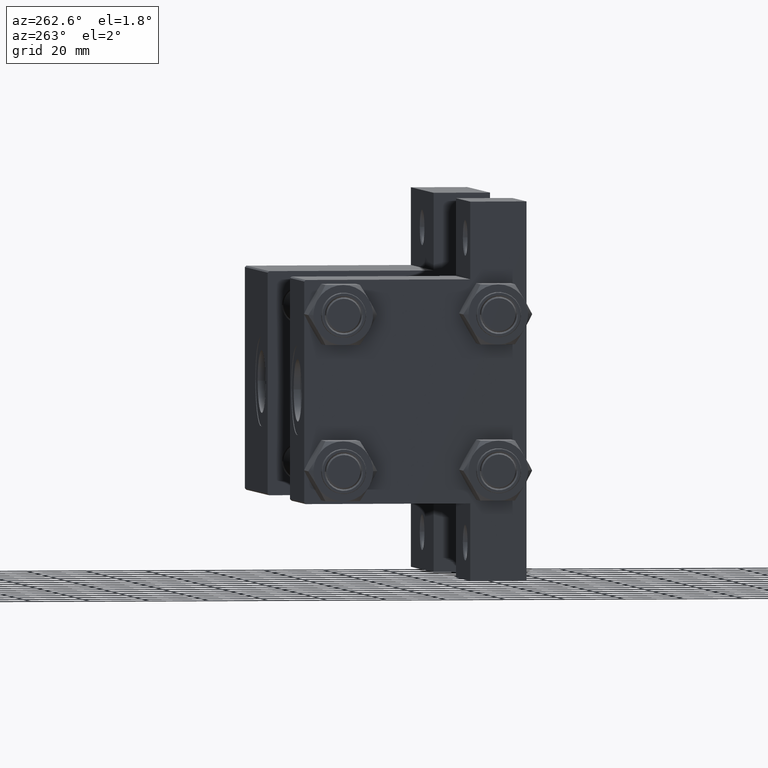
[diagram: clean part render]
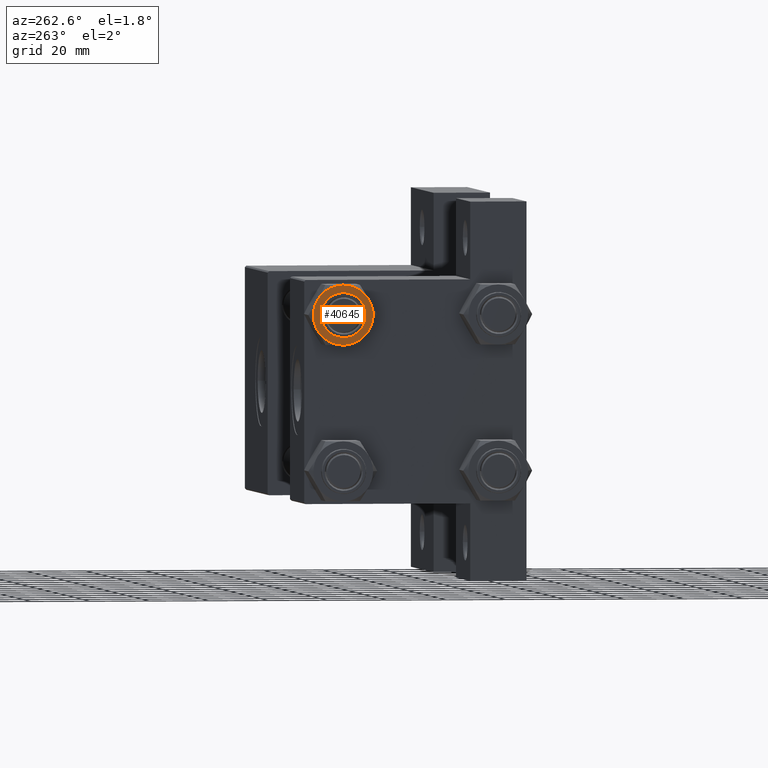
[diagram: same view with one face highlighted and labeled with its STEP entity id]
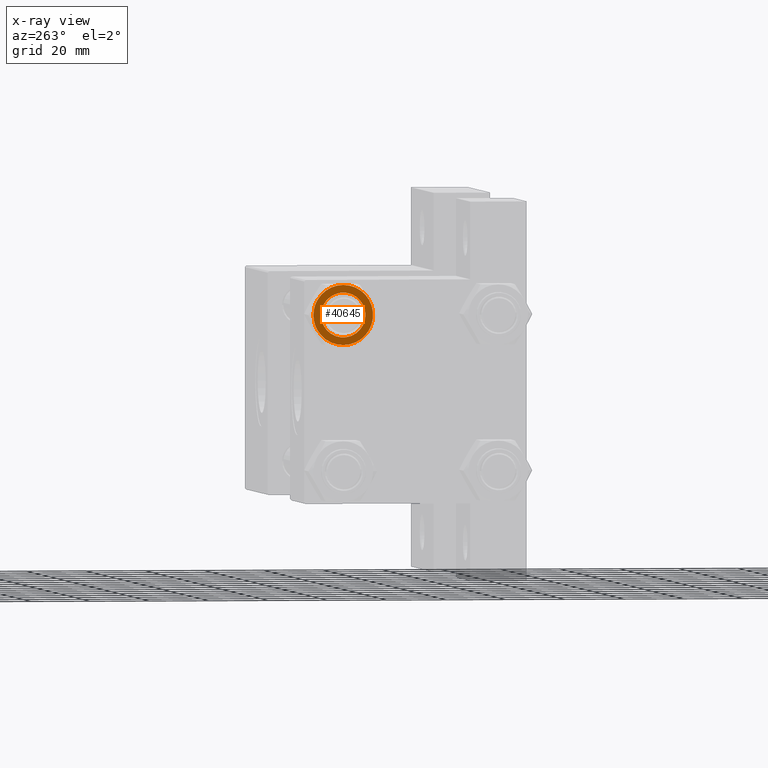
[diagram: x-ray of the same camera — body ghosted, the highlighted face saturated]
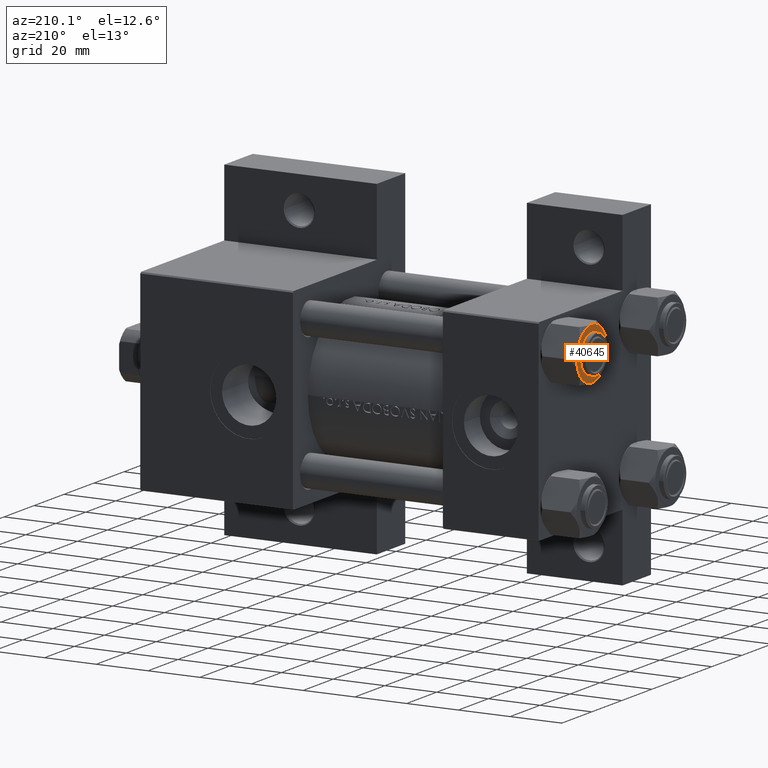
[diagram: same view with one face highlighted and labeled with its STEP entity id]
A machine part, auxiliary view. The second image highlights one B-rep face of the part: STEP entity #40645.
The next image is the same camera in x-ray: the body ghosted, the highlighted face saturated — about 0% of this face is hidden behind the body in this view.
A second angle (auxiliary view) of the same face is appended — the face is thin or edge-on in the first view.
In plain terms, the highlighted planar face has unit normal (1, 0, -0).
Its self-contained STEP definition (entity closure, byte-faithful):
#592 = CARTESIAN_POINT ( 'NONE',  ( -7.500000000000000000, 0.000000000000000000, 0.000000000000000000 ) ) ;
#1505 = CARTESIAN_POINT ( 'NONE',  ( -8.715000000000001634, 5.031607595987591885, 0.000000000000000000 ) ) ;
#1797 = VERTEX_POINT ( 'NONE', #3188 ) ;
#1928 = EDGE_CURVE ( 'NONE', #35467, #20405, #10352, .T. ) ;
#1988 = DIRECTION ( 'NONE',  ( -1.000000000000000000, 0.000000000000000000, 0.000000000000000000 ) ) ;
#2382 = AXIS2_PLACEMENT_3D ( 'NONE', #20763, #35422, #38802 ) ;
#2423 = DIRECTION ( 'NONE',  ( 0.000000000000000000, -0.000000000000000000, -1.000000000000000000 ) ) ;
#3188 = CARTESIAN_POINT ( 'NONE',  ( 8.715000000000001634, -5.031607595987590997, 0.000000000000000000 ) ) ;
#3272 = AXIS2_PLACEMENT_3D ( 'NONE', #25765, #8216, #22866 ) ;
#4288 = DIRECTION ( 'NONE',  ( 1.000000000000000000, 0.000000000000000000, 0.000000000000000000 ) ) ;
#5255 = DIRECTION ( 'NONE',  ( -1.000000000000000000, 0.000000000000000000, 0.000000000000000000 ) ) ;
#5811 = DIRECTION ( 'NONE',  ( -1.000000000000000000, 0.000000000000000000, 0.000000000000000000 ) ) ;
#6531 = AXIS2_PLACEMENT_3D ( 'NONE', #31821, #14010, #14246 ) ;
#8216 = DIRECTION ( 'NONE',  ( 0.000000000000000000, -0.000000000000000000, -1.000000000000000000 ) ) ;
#8768 = ORIENTED_EDGE ( 'NONE', *, *, #1928, .F. ) ;
#9332 = CARTESIAN_POINT ( 'NONE',  ( 0.000000000000000000, 0.000000000000000000, 0.000000000000000000 ) ) ;
#9362 = EDGE_CURVE ( 'NONE', #37608, #1797, #15188, .T. ) ;
#9383 = DIRECTION ( 'NONE',  ( 1.000000000000000000, 0.000000000000000000, 0.000000000000000000 ) ) ;
#9446 = FACE_OUTER_BOUND ( 'NONE', #14281, .T. ) ;
#9846 = CARTESIAN_POINT ( 'NONE',  ( 0.000000000000000000, 0.000000000000000000, 0.000000000000000000 ) ) ;
#9892 = CARTESIAN_POINT ( 'NONE',  ( 0.000000000000000000, 0.000000000000000000, 0.000000000000000000 ) ) ;
#9905 = DIRECTION ( 'NONE',  ( -1.000000000000000000, 0.000000000000000000, -0.000000000000000000 ) ) ;
#10352 = CIRCLE ( 'NONE', #37238, 10.06321519197517844 ) ;
#12117 = ORIENTED_EDGE ( 'NONE', *, *, #16244, .T. ) ;
#12328 = CARTESIAN_POINT ( 'NONE',  ( 7.500000000000000000, 9.184850993605147944E-16, 0.000000000000000000 ) ) ;
#13387 = CARTESIAN_POINT ( 'NONE',  ( 1.502314598737159820E-15, -10.06321519197518022, 0.000000000000000000 ) ) ;
#14010 = DIRECTION ( 'NONE',  ( 0.000000000000000000, -0.000000000000000000, -1.000000000000000000 ) ) ;
#14039 = AXIS2_PLACEMENT_3D ( 'NONE', #9332, #23758, #5255 ) ;
#14246 = DIRECTION ( 'NONE',  ( -1.000000000000000000, 0.000000000000000000, 0.000000000000000000 ) ) ;
#14281 = EDGE_LOOP ( 'NONE', ( #29131, #8768, #33385, #38117, #16621, #36216, #12117 ) ) ;
#14742 = CARTESIAN_POINT ( 'NONE',  ( 0.000000000000000000, 10.06321519197518022, 0.000000000000000000 ) ) ;
#14873 = ORIENTED_EDGE ( 'NONE', *, *, #21754, .F. ) ;
#15188 = CIRCLE ( 'NONE', #45114, 10.06321519197517844 ) ;
#15826 = EDGE_CURVE ( 'NONE', #38869, #33541, #36885, .T. ) ;
#16151 = CARTESIAN_POINT ( 'NONE',  ( 0.000000000000000000, 0.000000000000000000, 0.000000000000000000 ) ) ;
#16244 = EDGE_CURVE ( 'NONE', #30643, #34503, #46091, .T. ) ;
#16621 = ORIENTED_EDGE ( 'NONE', *, *, #9362, .F. ) ;
#18665 = AXIS2_PLACEMENT_3D ( 'NONE', #28654, #35161, #9905 ) ;
#20405 = VERTEX_POINT ( 'NONE', #1505 ) ;
#20437 = EDGE_CURVE ( 'NONE', #30643, #37608, #26280, .T. ) ;
#20763 = CARTESIAN_POINT ( 'NONE',  ( 0.000000000000000000, 0.000000000000000000, 0.000000000000000000 ) ) ;
#20953 = CIRCLE ( 'NONE', #40887, 7.500000000000000000 ) ;
#21754 = EDGE_CURVE ( 'NONE', #33541, #38869, #20953, .T. ) ;
#22704 = EDGE_CURVE ( 'NONE', #25763, #35467, #23183, .T. ) ;
#22732 = CARTESIAN_POINT ( 'NONE',  ( 8.715000000000003411, 5.031607595987588333, 0.000000000000000000 ) ) ;
#22866 = DIRECTION ( 'NONE',  ( -1.000000000000000000, 0.000000000000000000, 0.000000000000000000 ) ) ;
#23183 = CIRCLE ( 'NONE', #14039, 10.06321519197517844 ) ;
#23545 = DIRECTION ( 'NONE',  ( 0.000000000000000000, -0.000000000000000000, -1.000000000000000000 ) ) ;
#23726 = CARTESIAN_POINT ( 'NONE',  ( 10.06321519197517844, 0.000000000000000000, 0.000000000000000000 ) ) ;
#23758 = DIRECTION ( 'NONE',  ( 0.000000000000000000, -0.000000000000000000, -1.000000000000000000 ) ) ;
#24891 = EDGE_CURVE ( 'NONE', #1797, #25763, #33206, .T. ) ;
#25518 = AXIS2_PLACEMENT_3D ( 'NONE', #9892, #45491, #1988 ) ;
#25763 = VERTEX_POINT ( 'NONE', #13387 ) ;
#25765 = CARTESIAN_POINT ( 'NONE',  ( 0.000000000000000000, 0.000000000000000000, 0.000000000000000000 ) ) ;
#26280 = CIRCLE ( 'NONE', #25518, 10.06321519197517844 ) ;
#26482 = CIRCLE ( 'NONE', #6531, 10.06321519197517844 ) ;
#27654 = DIRECTION ( 'NONE',  ( 0.000000000000000000, 0.000000000000000000, 1.000000000000000000 ) ) ;
#27954 = PLANE ( 'NONE',  #18665 ) ;
#28654 = CARTESIAN_POINT ( 'NONE',  ( 0.000000000000000000, 0.000000000000000000, 0.000000000000000000 ) ) ;
#29131 = ORIENTED_EDGE ( 'NONE', *, *, #30089, .F. ) ;
#29530 = CARTESIAN_POINT ( 'NONE',  ( 0.000000000000000000, 0.000000000000000000, 0.000000000000000000 ) ) ;
#30089 = EDGE_CURVE ( 'NONE', #20405, #34503, #26482, .T. ) ;
#30107 = ORIENTED_EDGE ( 'NONE', *, *, #15826, .F. ) ;
#30643 = VERTEX_POINT ( 'NONE', #22732 ) ;
#30990 = CARTESIAN_POINT ( 'NONE',  ( 0.000000000000000000, 0.000000000000000000, 0.000000000000000000 ) ) ;
#31821 = CARTESIAN_POINT ( 'NONE',  ( 0.000000000000000000, 0.000000000000000000, 0.000000000000000000 ) ) ;
#32304 = CARTESIAN_POINT ( 'NONE',  ( -8.715000000000005187, -5.031607595987585668, 0.000000000000000000 ) ) ;
#33018 = EDGE_LOOP ( 'NONE', ( #14873, #30107 ) ) ;
#33206 = CIRCLE ( 'NONE', #3272, 10.06321519197517844 ) ;
#33385 = ORIENTED_EDGE ( 'NONE', *, *, #22704, .F. ) ;
#33541 = VERTEX_POINT ( 'NONE', #592 ) ;
#33989 = FACE_BOUND ( 'NONE', #33018, .T. ) ;
#34503 = VERTEX_POINT ( 'NONE', #14742 ) ;
#35161 = DIRECTION ( 'NONE',  ( 0.000000000000000000, 0.000000000000000000, -1.000000000000000000 ) ) ;
#35359 = AXIS2_PLACEMENT_3D ( 'NONE', #29530, #44175, #4288 ) ;
#35422 = DIRECTION ( 'NONE',  ( 0.000000000000000000, 0.000000000000000000, 1.000000000000000000 ) ) ;
#35467 = VERTEX_POINT ( 'NONE', #32304 ) ;
#36216 = ORIENTED_EDGE ( 'NONE', *, *, #20437, .F. ) ;
#36885 = CIRCLE ( 'NONE', #35359, 7.500000000000000000 ) ;
#37238 = AXIS2_PLACEMENT_3D ( 'NONE', #16151, #2423, #5811 ) ;
#37608 = VERTEX_POINT ( 'NONE', #23726 ) ;
#38117 = ORIENTED_EDGE ( 'NONE', *, *, #24891, .F. ) ;
#38802 = DIRECTION ( 'NONE',  ( 1.000000000000000000, 0.000000000000000000, 0.000000000000000000 ) ) ;
#38869 = VERTEX_POINT ( 'NONE', #12328 ) ;
#40645 = ADVANCED_FACE ( 'NONE', ( #33989, #9446 ), #27954, .F. ) ;
#40887 = AXIS2_PLACEMENT_3D ( 'NONE', #9846, #27654, #9383 ) ;
#42031 = DIRECTION ( 'NONE',  ( -1.000000000000000000, 0.000000000000000000, 0.000000000000000000 ) ) ;
#44175 = DIRECTION ( 'NONE',  ( 0.000000000000000000, 0.000000000000000000, 1.000000000000000000 ) ) ;
#45114 = AXIS2_PLACEMENT_3D ( 'NONE', #30990, #23545, #42031 ) ;
#45491 = DIRECTION ( 'NONE',  ( 0.000000000000000000, -0.000000000000000000, -1.000000000000000000 ) ) ;
#46091 = CIRCLE ( 'NONE', #2382, 10.06321519197518022 ) ;